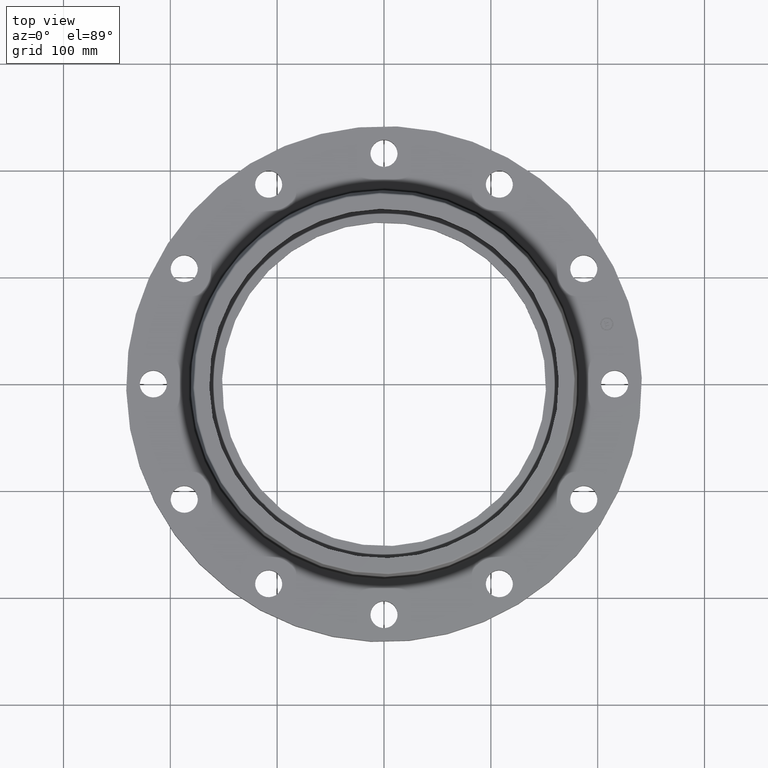
[diagram: clean part render]
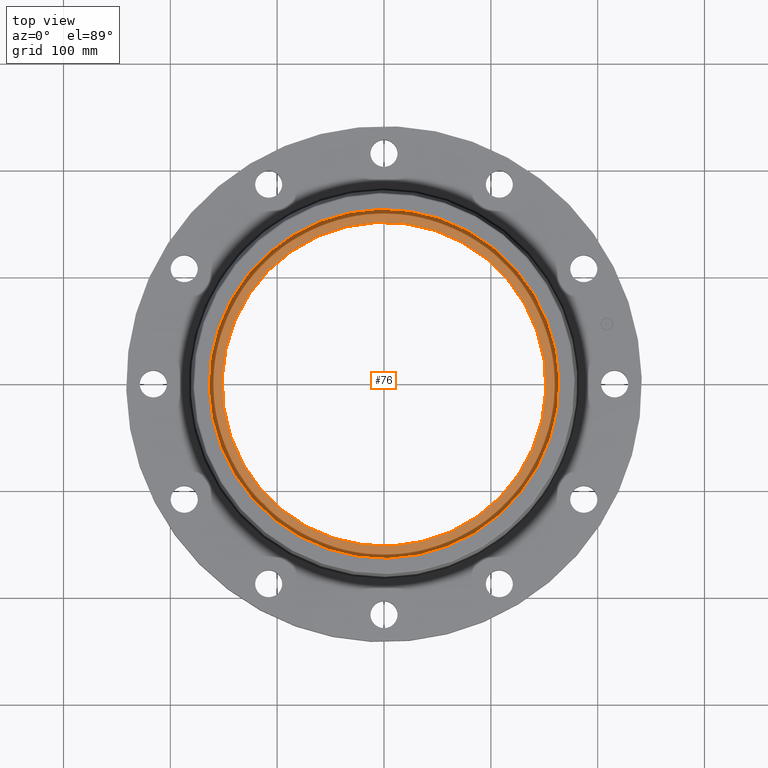
[diagram: same view with one face highlighted and labeled with its STEP entity id]
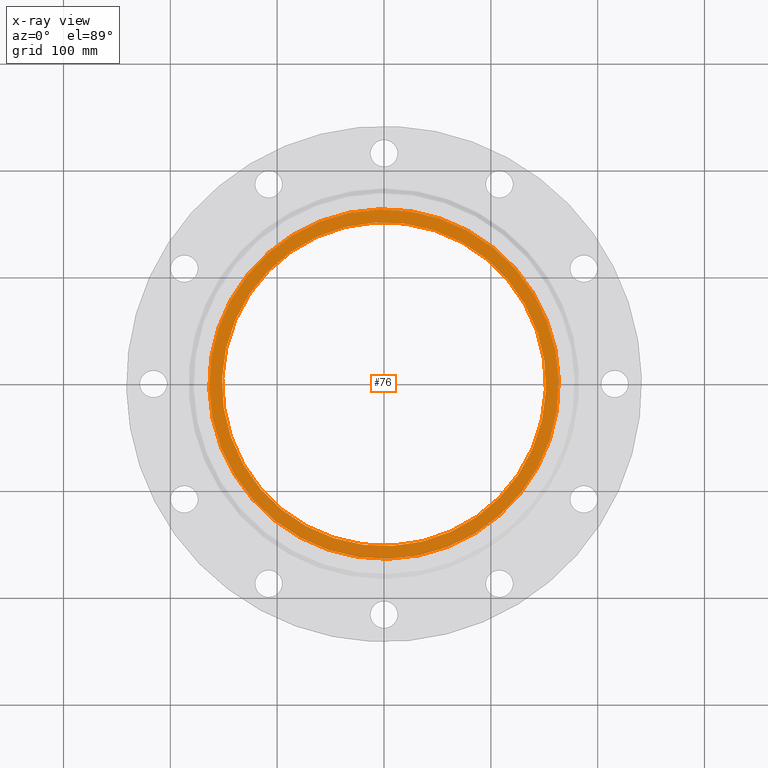
[diagram: x-ray of the same camera — body ghosted, the highlighted face saturated]
A machine part, top view. The second image highlights one B-rep face of the part: STEP entity #76.
The next image is the same camera in x-ray: the body ghosted, the highlighted face saturated — about 0% of this face is hidden behind the body in this view.
In plain terms, the highlighted planar face has unit normal (0, 0, -1).
Its self-contained STEP definition (entity closure, byte-faithful):
#38=AXIS2_PLACEMENT_3D('Plane Axis2P3D',#35,#36,#37) ;
#42=AXIS2_PLACEMENT_3D('Circle Axis2P3D',#40,#41,$) ;
#51=AXIS2_PLACEMENT_3D('Circle Axis2P3D',#49,#50,$) ;
#60=AXIS2_PLACEMENT_3D('Circle Axis2P3D',#58,#59,$) ;
#69=AXIS2_PLACEMENT_3D('Circle Axis2P3D',#67,#68,$) ;
#35=CARTESIAN_POINT('Axis2P3D Location',(1.04902962957E-016,-6.99353086378E-017,0.560000000002)) ;
#40=CARTESIAN_POINT('Axis2P3D Location',(1.04902962957E-016,-6.99353086378E-017,0.560000000002)) ;
#44=CARTESIAN_POINT('Vertex',(-5.6516316986,3.08750046862,0.560000000002)) ;
#46=CARTESIAN_POINT('Vertex',(5.6516316986,-3.08750046862,0.560000000002)) ;
#49=CARTESIAN_POINT('Axis2P3D Location',(1.04902962957E-016,-6.99353086378E-017,0.560000000002)) ;
#58=CARTESIAN_POINT('Axis2P3D Location',(-2.69250938256E-015,-4.89547160465E-016,0.560000000002)) ;
#62=CARTESIAN_POINT('Vertex',(-2.86169103994,-5.23829031194,0.560000000002)) ;
#64=CARTESIAN_POINT('Vertex',(2.86169103994,5.23829031194,0.560000000002)) ;
#67=CARTESIAN_POINT('Axis2P3D Location',(-1.01406197525E-015,-6.2941777774E-016,0.560000000002)) ;
#36=DIRECTION('Axis2P3D Direction',(0.,0.,-0.0393700787402)) ;
#37=DIRECTION('Axis2P3D XDirection',(0.0393700787402,0.,0.)) ;
#41=DIRECTION('Axis2P3D Direction',(0.,0.,-0.0393700787402)) ;
#50=DIRECTION('Axis2P3D Direction',(0.,0.,-0.0393700787402)) ;
#59=DIRECTION('Axis2P3D Direction',(0.,0.,-0.0393700787402)) ;
#68=DIRECTION('Axis2P3D Direction',(0.,0.,-0.0393700787402)) ;
#55=ORIENTED_EDGE('',*,*,#48,.F.) ;
#56=ORIENTED_EDGE('',*,*,#53,.F.) ;
#73=ORIENTED_EDGE('',*,*,#66,.T.) ;
#74=ORIENTED_EDGE('',*,*,#71,.T.) ;
#75=FACE_BOUND('',#72,.T.) ;
#76=ADVANCED_FACE('PartBody',(#57,#75),#39,.F.) ;
#43=CIRCLE('generated circle',#42,6.44000000003) ;
#52=CIRCLE('generated circle',#51,6.44000000003) ;
#61=CIRCLE('generated circle',#60,5.96900000002) ;
#70=CIRCLE('generated circle',#69,5.96900000002) ;
#48=EDGE_CURVE('',#45,#47,#43,.T.) ;
#53=EDGE_CURVE('',#47,#45,#52,.T.) ;
#66=EDGE_CURVE('',#63,#65,#61,.T.) ;
#71=EDGE_CURVE('',#65,#63,#70,.T.) ;
#54=EDGE_LOOP('',(#55,#56)) ;
#72=EDGE_LOOP('',(#73,#74)) ;
#57=FACE_OUTER_BOUND('',#54,.T.) ;
#39=PLANE('',#38) ;
#45=VERTEX_POINT('',#44) ;
#47=VERTEX_POINT('',#46) ;
#63=VERTEX_POINT('',#62) ;
#65=VERTEX_POINT('',#64) ;